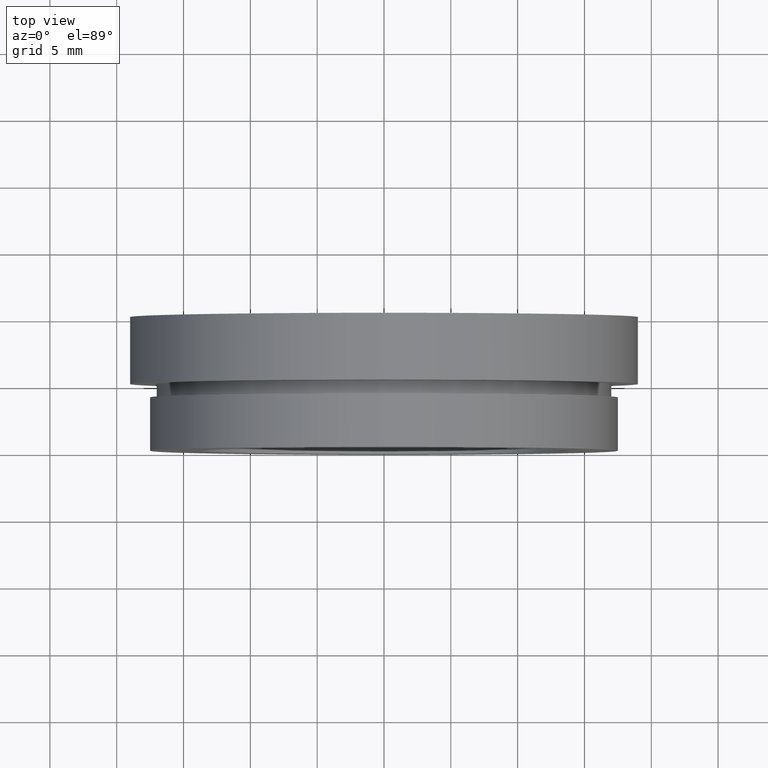
[diagram: clean part render]
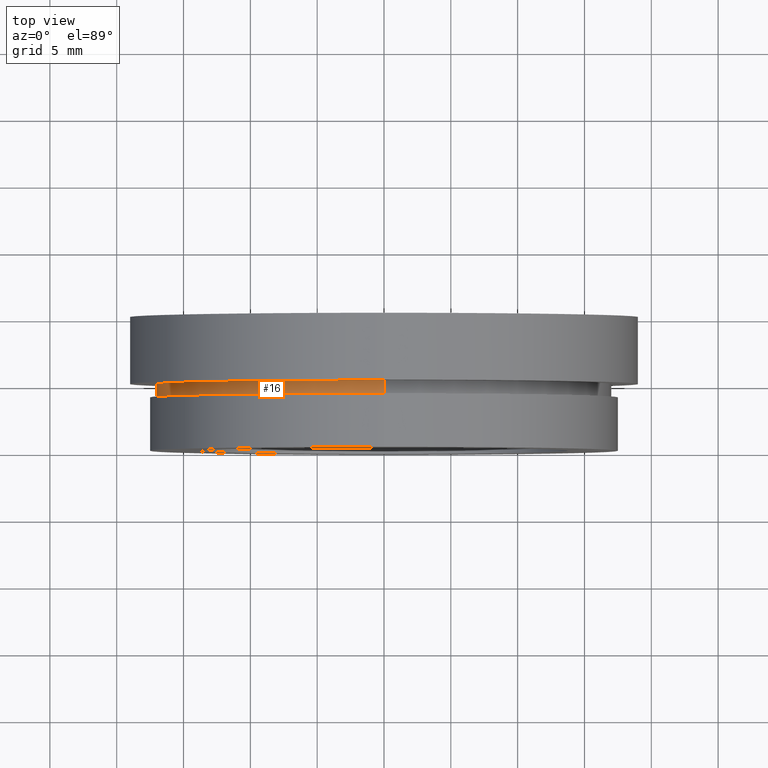
[diagram: same view with one face highlighted and labeled with its STEP entity id]
A machine part, top view. The second image highlights one B-rep face of the part: STEP entity #16.
In plain terms, the highlighted cylindrical surface (partial cylindrical patch) has radius 17 mm, axis along (-0, 1, -0).
Its self-contained STEP definition (entity closure, byte-faithful):
#10 = AXIS2_PLACEMENT_3D ( 'NONE', #317, #52, #461 ) ;
#16 = ADVANCED_FACE ( 'NONE', ( #28 ), #397, .T. ) ;
#28 = FACE_OUTER_BOUND ( 'NONE', #241, .T. ) ;
#52 = DIRECTION ( 'NONE',  ( -0.0000000000000000000, 1.000000000000000000, -0.0000000000000000000 ) ) ;
#58 = EDGE_CURVE ( 'NONE', #437, #175, #611, .T. ) ;
#68 = AXIS2_PLACEMENT_3D ( 'NONE', #93, #262, #400 ) ;
#74 = AXIS2_PLACEMENT_3D ( 'NONE', #185, #328, #91 ) ;
#91 = DIRECTION ( 'NONE',  ( 0.0000000000000000000, 0.0000000000000000000, 1.000000000000000000 ) ) ;
#93 = CARTESIAN_POINT ( 'NONE',  ( 0.0000000000000000000, 4.000000000000000000, 0.0000000000000000000 ) ) ;
#98 = VERTEX_POINT ( 'NONE', #430 ) ;
#119 = EDGE_CURVE ( 'NONE', #175, #365, #510, .T. ) ;
#130 = ORIENTED_EDGE ( 'NONE', *, *, #119, .T. ) ;
#132 = DIRECTION ( 'NONE',  ( -0.0000000000000000000, 1.000000000000000000, -0.0000000000000000000 ) ) ;
#134 = ORIENTED_EDGE ( 'NONE', *, *, #58, .T. ) ;
#175 = VERTEX_POINT ( 'NONE', #394 ) ;
#185 = CARTESIAN_POINT ( 'NONE',  ( 0.0000000000000000000, 5.000000000000000900, 0.0000000000000000000 ) ) ;
#199 = CARTESIAN_POINT ( 'NONE',  ( 0.0000000000000000000, 5.000000000000000900, 17.00000000000000000 ) ) ;
#241 = EDGE_LOOP ( 'NONE', ( #578, #134, #130, #313 ) ) ;
#242 = CARTESIAN_POINT ( 'NONE',  ( 0.0000000000000000000, 13.74468085106383300, 17.00000000000000000 ) ) ;
#262 = DIRECTION ( 'NONE',  ( -0.0000000000000000000, 1.000000000000000000, -0.0000000000000000000 ) ) ;
#265 = VECTOR ( 'NONE', #582, 1000.000000000000000 ) ;
#313 = ORIENTED_EDGE ( 'NONE', *, *, #622, .F. ) ;
#317 = CARTESIAN_POINT ( 'NONE',  ( 0.0000000000000000000, 13.74468085106383300, 0.0000000000000000000 ) ) ;
#328 = DIRECTION ( 'NONE',  ( -0.0000000000000000000, 1.000000000000000000, -0.0000000000000000000 ) ) ;
#365 = VERTEX_POINT ( 'NONE', #199 ) ;
#394 = CARTESIAN_POINT ( 'NONE',  ( 0.0000000000000000000, 4.000000000000000000, 17.00000000000000000 ) ) ;
#397 = CYLINDRICAL_SURFACE ( 'NONE', #10, 17.00000000000000000 ) ;
#400 = DIRECTION ( 'NONE',  ( 0.0000000000000000000, 0.0000000000000000000, 1.000000000000000000 ) ) ;
#422 = CARTESIAN_POINT ( 'NONE',  ( 2.081899558550500300E-015, 4.000000000000000000, -17.00000000000000000 ) ) ;
#430 = CARTESIAN_POINT ( 'NONE',  ( 2.081899558550500300E-015, 5.000000000000000900, -17.00000000000000000 ) ) ;
#436 = LINE ( 'NONE', #572, #265 ) ;
#437 = VERTEX_POINT ( 'NONE', #422 ) ;
#461 = DIRECTION ( 'NONE',  ( 0.0000000000000000000, 0.0000000000000000000, 1.000000000000000000 ) ) ;
#510 = LINE ( 'NONE', #242, #511 ) ;
#511 = VECTOR ( 'NONE', #132, 1000.000000000000000 ) ;
#513 = CIRCLE ( 'NONE', #74, 17.00000000000000000 ) ;
#569 = EDGE_CURVE ( 'NONE', #437, #98, #436, .T. ) ;
#572 = CARTESIAN_POINT ( 'NONE',  ( 2.081899558550500300E-015, 13.74468085106383300, -17.00000000000000000 ) ) ;
#578 = ORIENTED_EDGE ( 'NONE', *, *, #569, .F. ) ;
#582 = DIRECTION ( 'NONE',  ( -0.0000000000000000000, 1.000000000000000000, -0.0000000000000000000 ) ) ;
#611 = CIRCLE ( 'NONE', #68, 17.00000000000000000 ) ;
#622 = EDGE_CURVE ( 'NONE', #98, #365, #513, .T. ) ;